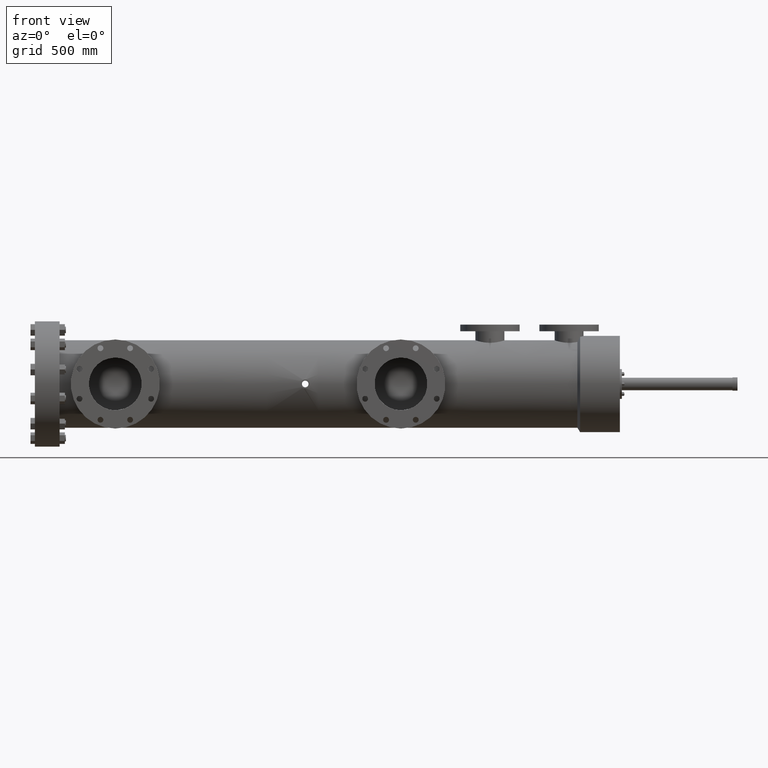
[diagram: clean part render]
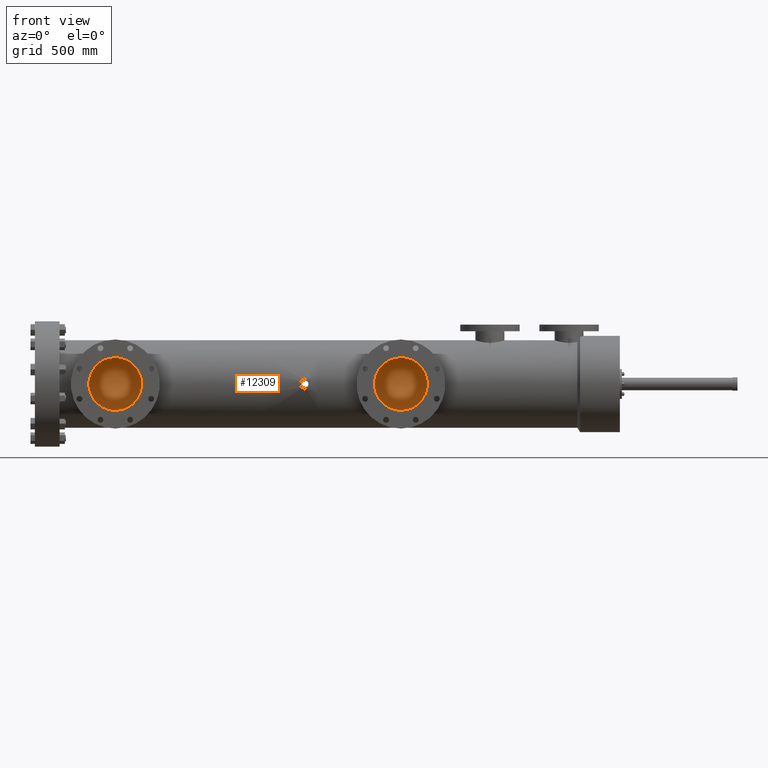
[diagram: same view with one face highlighted and labeled with its STEP entity id]
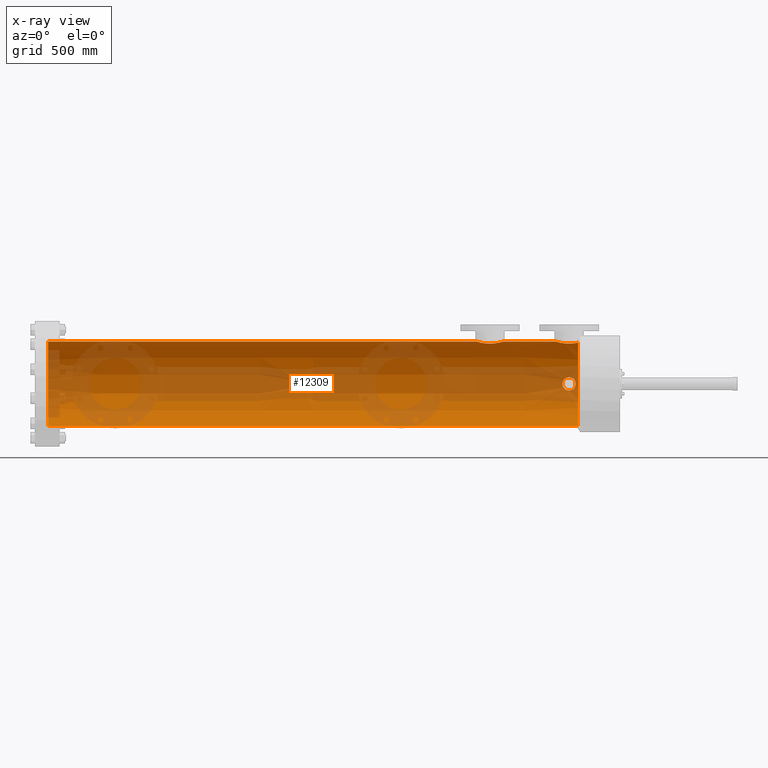
[diagram: x-ray of the same camera — body ghosted, the highlighted face saturated]
A machine part, front view. The second image highlights one B-rep face of the part: STEP entity #12309.
The next image is the same camera in x-ray: the body ghosted, the highlighted face saturated — about 45% of this face is hidden behind the body in this view.
In plain terms, the highlighted conical surface has half-angle 0.002 deg.
Its self-contained STEP definition (entity closure, byte-faithful):
#115 = CARTESIAN_POINT ( 'NONE',  ( 774.8018974601540094, 190.5589292098104295, -0.6467010859224877617 ) ) ;
#169 = CARTESIAN_POINT ( 'NONE',  ( 773.6216814916365365, 184.6462986145902789, 6.412505325674096035 ) ) ;
#195 = CARTESIAN_POINT ( 'NONE',  ( 775.4012274676886136, 190.5153388177687077, -0.9870014884922523324 ) ) ;
#223 = ORIENTED_EDGE ( 'NONE', *, *, #16127, .T. ) ;
#321 = CARTESIAN_POINT ( 'NONE',  ( 776.5645900647415374, 190.5915681774710606, -0.03334633678277673652 ) ) ;
#401 = CARTESIAN_POINT ( 'NONE',  ( 735.4932779685070727, 190.5711632343196982, -0.4967609947282091709 ) ) ;
#410 = CARTESIAN_POINT ( 'NONE',  ( 776.0661116071254355, 190.5328679123720690, 0.8675504922731781532 ) ) ;
#435 = CARTESIAN_POINT ( 'NONE',  ( 775.0935359507411704, 186.1072391863953897, 6.128677650737027527 ) ) ;
#497 = CARTESIAN_POINT ( 'NONE',  ( 776.5121329472525531, 190.5836117278993243, 0.3213633591862034011 ) ) ;
#521 = CARTESIAN_POINT ( 'NONE',  ( 775.2851245018575810, 186.1443616974370343, 6.116773063595519311 ) ) ;
#590 = CARTESIAN_POINT ( 'NONE',  ( 775.5977059906512068, 190.5133874980668054, 0.9994983764693478046 ) ) ;
#611 = CARTESIAN_POINT ( 'NONE',  ( 775.6733703215244304, 186.1606542705831941, 6.111476365449473036 ) ) ;
#674 = CARTESIAN_POINT ( 'NONE',  ( 775.7437759936209432, 190.5158306480995805, -0.9838787867319562785 ) ) ;
#700 = DIRECTION ( 'NONE',  ( -1.000000000000000000, -0.0000000000000000000, -0.0000000000000000000 ) ) ;
#848 = CARTESIAN_POINT ( 'NONE',  ( 776.0503174261893946, 190.5318561841139910, -0.8742182035266556905 ) ) ;
#860 = CARTESIAN_POINT ( 'NONE',  ( 762.2461789292873391, 185.6670823260203917, 6.251050319724373416 ) ) ;
#931 = CARTESIAN_POINT ( 'NONE',  ( 775.5972991718479079, 190.5133230720630877, -0.9999073148402110034 ) ) ;
#933 = EDGE_CURVE ( 'NONE', #7680, #22756, #8028, .T. ) ;
#953 = CARTESIAN_POINT ( 'NONE',  ( 775.5268210231757848, 186.1654649984477601, 6.109896552126921065 ) ) ;
#1019 = CARTESIAN_POINT ( 'NONE',  ( 762.9514890501737909, 186.0671911915963221, 6.140886457887309469 ) ) ;
#1034 = DIRECTION ( 'NONE',  ( 0.0000000000000000000, 0.0000000000000000000, -1.000000000000000000 ) ) ;
#1047 = B_SPLINE_CURVE_WITH_KNOTS ( 'NONE', 3,
 ( #7298, #21105, #18875, #13166, #23079, #15149, #3088, #3426, #20857, #22836, #10990, #5381, #3341, #25045, #1208, #5301, #17220, #11069, #11239, #24877, #13249, #22758, #24787, #13078, #13002, #3170, #16974, #18960, #5466, #16189, #2646, #14617, #3479, #17609, #11737, #4132, #24485, #17837, #6178, #11277, #21220, #25133, #8050, #7711, #9686, #20323, #401, #14092, #4333 ),
 .UNSPECIFIED., .F., .F.,
 ( 4, 2, 2, 2, 2, 2, 2, 2, 2, 2, 2, 2, 2, 2, 2, 1, 2, 2, 2, 2, 2, 2, 2, 2, 4 ),
 ( 0.01136161700840032651, 0.01260292304035720741, 0.01384422907231408657, 0.01632684113623822028, 0.01756814716820032096, 0.01880945320016242511, 0.02129206526409538336, 0.02377467732802833814, 0.02501598335999477216, 0.02625728939196120271, 0.02873990145589406381, 0.02998120748786049436, 0.03122251351982692491, 0.03370512558375977907, 0.03494643161572619228, 0.03618773764769260548, 0.03742904367965901868, 0.03867034971162543189, 0.04115296177555825136, 0.04239426780752465762, 0.04363557383949107082, 0.04611818590341507096, 0.04735949193538196295, 0.04860079796734885493, 0.05108341003128268054 ),
 .UNSPECIFIED. ) ;
#1107 = DIRECTION ( 'NONE',  ( 0.9999999995803368069, 3.547940017089211670E-21, 2.897112881493199885E-05 ) ) ;
#1140 = CARTESIAN_POINT ( 'NONE',  ( 765.5653099672541657, 184.1630862371837907, 6.429896390524644900 ) ) ;
#1208 = CARTESIAN_POINT ( 'NONE',  ( 735.1611407429502378, 190.5831959563818998, 0.3048643232740104181 ) ) ;
#1262 = CARTESIAN_POINT ( 'NONE',  ( 735.7805527472095264, 190.5746806054010563, -0.4493246611605788421 ) ) ;
#1341 = CARTESIAN_POINT ( 'NONE',  ( 735.9346085877175483, 190.5819214555514804, 0.3301901266214414821 ) ) ;
#1356 = CARTESIAN_POINT ( 'NONE',  ( 764.0854868645545821, 186.0957372953721460, 6.132013986825921137 ) ) ;
#1379 = EDGE_LOOP ( 'NONE', ( #2669, #23758, #25103, #3828, #17767, #7952, #12653, #15263, #17862, #8351 ) ) ;
#1425 = CARTESIAN_POINT ( 'NONE',  ( 735.5587819821047333, 190.5709101236874403, 0.5000000000000544009 ) ) ;
#1445 = CARTESIAN_POINT ( 'NONE',  ( 765.0259242824093917, 185.5312030992457153, 6.282443076800944048 ) ) ;
#1509 = CARTESIAN_POINT ( 'NONE',  ( 735.9008304833172360, 190.5800300182329750, -0.3650597981005604953 ) ) ;
#1789 = EDGE_LOOP ( 'NONE', ( #19631, #23867 ) ) ;
#1840 = CARTESIAN_POINT ( 'NONE',  ( 774.6032820298526076, 190.5856385488207820, 0.2752661646979189802 ) ) ;
#2008 = CARTESIAN_POINT ( 'NONE',  ( 775.2422006397534915, 190.5212087151121807, -0.9487257024502747660 ) ) ;
#2091 = CARTESIAN_POINT ( 'NONE',  ( 775.4994325593563644, 190.5135714598633569, -0.9983151830777264868 ) ) ;
#2104 = VERTEX_POINT ( 'NONE', #6049 ) ;
#2176 = CARTESIAN_POINT ( 'NONE',  ( 774.5968164139786722, 190.5865985156552256, -0.2593974124721220575 ) ) ;
#2210 = CARTESIAN_POINT ( 'NONE',  ( 776.5010795724194850, 190.5819851870008961, 0.3522360067479590739 ) ) ;
#2235 = CARTESIAN_POINT ( 'NONE',  ( 773.9226440350281564, 185.3050793387506303, 6.327636448114230205 ) ) ;
#2316 = CARTESIAN_POINT ( 'NONE',  ( 773.9508210611377308, 185.3445829754314218, 6.320369488365783717 ) ) ;
#2330 = B_SPLINE_CURVE_WITH_KNOTS ( 'NONE', 3,
 ( #17441, #7596, #2091, #15892, #195, #23879, #2008, #23718, #4059, #3981, #11903, #19761, #3802, #13900, #17783, #6040, #115, #7940, #19842, #13645, #6122, #15622, #21859, #19589, #23542, #9909, #2176, #8021, #5787, #10070, #21595, #7767, #3894, #12075, #17867, #19923, #7857, #11991, #1840, #5952, #13974, #17608, #15975, #9746, #11736, #4131, #17950, #13818, #25520, #8100, #17690, #21943, #13727, #15710, #5869, #19671, #21683, #9831 ),
 .UNSPECIFIED., .F., .F.,
 ( 4, 2, 2, 2, 2, 2, 2, 2, 2, 2, 2, 2, 2, 2, 2, 2, 2, 2, 2, 2, 2, 2, 2, 2, 2, 2, 2, 2, 4 ),
 ( 0.05568771979550048157, 0.05817337644800811558, 0.06065903310051574959, 0.06563034640552065091, 0.06811600305802317790, 0.07060165971052570488, 0.07557297301552193258, 0.07681580134177115604, 0.07805862966802036562, 0.08054428632052530734, 0.08302994297303024906, 0.08427277129928271993, 0.08551559962553519079, 0.09048691293054507423, 0.09297256958304893348, 0.09421539790930036351, 0.09545822623555179354, 0.1004295395405575275, 0.1016723678668084579, 0.1029151961930593884, 0.1054008528455612492, 0.1103721661505648322, 0.1153434794555684151, 0.1178291361080665567, 0.1203147927605647122, 0.1252861060655610093, 0.1277717627180541826, 0.1302574193705473560, 0.1352287326755233499 ),
 .UNSPECIFIED. ) ;
#2484 = CARTESIAN_POINT ( 'NONE',  ( 696.5682505649399445, 184.1613553879231517, 0.0000000000000000000 ) ) ;
#2594 = CARTESIAN_POINT ( 'NONE',  ( 776.3576086705513717, 185.9998333693068560, 6.161792473806992021 ) ) ;
#2630 = VERTEX_POINT ( 'NONE', #9476 ) ;
#2646 = CARTESIAN_POINT ( 'NONE',  ( 735.0961553457668742, 190.5875617462756679, -0.1917574297461647759 ) ) ;
#2669 = ORIENTED_EDGE ( 'NONE', *, *, #4978, .F. ) ;
#2680 = CARTESIAN_POINT ( 'NONE',  ( 776.6366656246901812, 185.8548035121141595, 6.203482080270395826 ) ) ;
#2750 = CARTESIAN_POINT ( 'NONE',  ( 762.3992060489816822, 185.7895974161339154, 6.220338775416065502 ) ) ;
#2763 = CARTESIAN_POINT ( 'NONE',  ( 776.4461670853705755, 185.9590177594216982, 6.173828952968483996 ) ) ;
#2764 = AXIS2_PLACEMENT_3D ( 'NONE', #15475, #3921, #19519 ) ;
#2777 = EDGE_CURVE ( 'NONE', #22386, #6374, #9299, .T. ) ;
#2806 = FACE_OUTER_BOUND ( 'NONE', #1379, .T. ) ;
#2822 = CARTESIAN_POINT ( 'NONE',  ( 775.6786952553908350, 190.5143275026299534, -0.9935221949488035609 ) ) ;
#2918 = CARTESIAN_POINT ( 'NONE',  ( 762.1741049913357529, 185.6006542532556693, 6.266680284223852482 ) ) ;
#3088 = CARTESIAN_POINT ( 'NONE',  ( 735.3977096099723667, 190.5728575839785606, 0.4744782333907113792 ) ) ;
#3144 = CARTESIAN_POINT ( 'NONE',  ( 735.7195095595885732, 190.5729104931402560, -0.4737464280718589604 ) ) ;
#3170 = CARTESIAN_POINT ( 'NONE',  ( 735.0587947307024024, 190.5903672024202535, -0.03283189096730383671 ) ) ;
#3310 = LINE ( 'NONE', #3713, #10372 ) ;
#3341 = CARTESIAN_POINT ( 'NONE',  ( 735.2285011193112041, 190.5793621758232348, 0.3768350768965784137 ) ) ;
#3419 = CARTESIAN_POINT ( 'NONE',  ( 765.5138910721260572, 184.6187636010735957, 6.413928218067154852 ) ) ;
#3426 = CARTESIAN_POINT ( 'NONE',  ( 735.3522959367327303, 190.5742114230318975, 0.4556665324809229811 ) ) ;
#3477 = CARTESIAN_POINT ( 'NONE',  ( 736.0213825182054279, 190.5875866659651763, -0.1918188493781887438 ) ) ;
#3479 = CARTESIAN_POINT ( 'NONE',  ( 735.1255078316979734, 190.5855205362816491, -0.2500820559305814150 ) ) ;
#3561 = CARTESIAN_POINT ( 'NONE',  ( 736.0580082943215530, 190.5903368184789883, 0.03231260620741710499 ) ) ;
#3638 = CARTESIAN_POINT ( 'NONE',  ( 735.8638333524589825, 190.5781159375073344, 0.3975228399193793671 ) ) ;
#3694 = FACE_BOUND ( 'NONE', #16686, .T. ) ;
#3713 = CARTESIAN_POINT ( 'NONE',  ( 698.3182562679656940, 184.1613553879231517, 6.427948391113559978 ) ) ;
#3727 = EDGE_CURVE ( 'NONE', #22756, #15425, #23454, .T. ) ;
#3802 = CARTESIAN_POINT ( 'NONE',  ( 774.9040929305222107, 190.5473950188007848, -0.7534773077110000772 ) ) ;
#3828 = ORIENTED_EDGE ( 'NONE', *, *, #9170, .F. ) ;
#3894 = CARTESIAN_POINT ( 'NONE',  ( 774.5647793454040766, 190.5915138887940543, -0.01591537890057930296 ) ) ;
#3921 = DIRECTION ( 'NONE',  ( 1.000000000000000000, 0.0000000000000000000, 0.0000000000000000000 ) ) ;
#3981 = CARTESIAN_POINT ( 'NONE',  ( 775.0637804840727085, 190.5329619064193594, -0.8660175990655025746 ) ) ;
#4059 = CARTESIAN_POINT ( 'NONE',  ( 775.1219293945142681, 190.5286560253550761, -0.8971401039078031880 ) ) ;
#4088 = CARTESIAN_POINT ( 'NONE',  ( 761.5653101469899866, 184.1623938999732388, 6.429780673746382291 ) ) ;
#4104 = CARTESIAN_POINT ( 'NONE',  ( 773.5649761354594602, 184.2620171177405268, 6.430096033903203612 ) ) ;
#4131 = CARTESIAN_POINT ( 'NONE',  ( 774.8807730735202313, 190.5499743744161094, 0.7301535079844102549 ) ) ;
#4132 = CARTESIAN_POINT ( 'NONE',  ( 735.1821387323742556, 190.5819147106084301, -0.3304584306983124886 ) ) ;
#4196 = CARTESIAN_POINT ( 'NONE',  ( 774.0098254708449304, 185.4219625068727737, 6.305483898899150397 ) ) ;
#4258 = CARTESIAN_POINT ( 'NONE',  ( 775.9327744047394617, 190.5239703713840527, 0.9298409638293061441 ) ) ;
#4280 = CARTESIAN_POINT ( 'NONE',  ( 774.4735909862067729, 185.8401149349418233, 6.207201693404065246 ) ) ;
#4315 = EDGE_CURVE ( 'NONE', #21035, #7680, #18648, .T. ) ;
#4333 = CARTESIAN_POINT ( 'NONE',  ( 735.5587819821047333, 190.5709101236874403, -0.5000000000000544009 ) ) ;
#4341 = CARTESIAN_POINT ( 'NONE',  ( 776.1736413203137772, 190.5424117127975592, 0.7937790725545542658 ) ) ;
#4363 = CARTESIAN_POINT ( 'NONE',  ( 775.1412864707529025, 186.1182029664798279, 6.125187250111346238 ) ) ;
#4421 = CARTESIAN_POINT ( 'NONE',  ( 775.5646964343260379, 190.5133221158980348, -0.9999073148120636301 ) ) ;
#4455 = VERTEX_POINT ( 'NONE', #11486 ) ;
#4622 = CARTESIAN_POINT ( 'NONE',  ( 765.5653088887836475, 184.1613553879231517, 6.429896614138280064 ) ) ;
#4686 = CARTESIAN_POINT ( 'NONE',  ( 773.5649772248250429, 184.1613553879231517, 6.430128373560217270 ) ) ;
#4696 = CARTESIAN_POINT ( 'NONE',  ( 761.6427979739569309, 184.7157204222528435, 6.405917552011721305 ) ) ;
#4768 = CARTESIAN_POINT ( 'NONE',  ( 776.5564245662775420, 190.5903024741597278, -0.1317979291871519687 ) ) ;
#4778 = CARTESIAN_POINT ( 'NONE',  ( 763.8286140777847777, 186.1503603818511579, 6.114532825331004062 ) ) ;
#4792 = CARTESIAN_POINT ( 'NONE',  ( 776.7937629589727067, 185.7443609993572124, 6.232584394557497909 ) ) ;
#4849 = CARTESIAN_POINT ( 'NONE',  ( 735.8499999188074980, 190.5775165648176994, -0.4067661292010156249 ) ) ;
#4860 = CARTESIAN_POINT ( 'NONE',  ( 776.5308609728500642, 190.5864018784632492, -0.2596422911563070479 ) ) ;
#4868 = CARTESIAN_POINT ( 'NONE',  ( 762.2710868071127379, 185.6885738478931387, 6.245830946577670240 ) ) ;
#4880 = CARTESIAN_POINT ( 'NONE',  ( 776.2444310484091829, 186.0451164575074472, 6.148109644990564782 ) ) ;
#4951 = CARTESIAN_POINT ( 'NONE',  ( 763.4992915001399751, 186.1626173790483278, 6.110462681510800742 ) ) ;
#4978 = EDGE_CURVE ( 'NONE', #14492, #4455, #3310, .T. ) ;
#5002 = VERTEX_POINT ( 'NONE', #13633 ) ;
#5035 = CARTESIAN_POINT ( 'NONE',  ( 761.7437091770744928, 184.9916993813514523, 6.376233718492364311 ) ) ;
#5212 = CARTESIAN_POINT ( 'NONE',  ( 765.3005116552235449, 185.1664922957834563, 6.351796742237810101 ) ) ;
#5301 = CARTESIAN_POINT ( 'NONE',  ( 735.1339984724335181, 190.5849519810043091, 0.2642426395985386089 ) ) ;
#5332 = CARTESIAN_POINT ( 'NONE',  ( 773.5649772248250429, 184.1613553879231517, 6.430128373560217270 ) ) ;
#5358 = CARTESIAN_POINT ( 'NONE',  ( 735.5914012567219515, 190.5709110715756935, 0.5000000000000545120 ) ) ;
#5368 = CARTESIAN_POINT ( 'NONE',  ( 698.3182562679656940, 184.1613553879231517, 6.427948391113559978 ) ) ;
#5381 = CARTESIAN_POINT ( 'NONE',  ( 735.2537477102983985, 190.5780985150881861, 0.3975112941969108915 ) ) ;
#5443 = CARTESIAN_POINT ( 'NONE',  ( 735.6882991040369006, 190.5722032187923105, 0.4832110644546664391 ) ) ;
#5459 = CARTESIAN_POINT ( 'NONE',  ( 765.4978910570342805, 184.6825818361337781, 6.409049507614184016 ) ) ;
#5466 = CARTESIAN_POINT ( 'NONE',  ( 735.0756269763263617, 190.5890787915352291, -0.1297276018896044436 ) ) ;
#5524 = CARTESIAN_POINT ( 'NONE',  ( 735.9653586397062099, 190.5837976854255942, 0.2914875042189448151 ) ) ;
#5613 = CARTESIAN_POINT ( 'NONE',  ( 735.7797735717568912, 190.5747089254424793, 0.4488097811508083845 ) ) ;
#5787 = CARTESIAN_POINT ( 'NONE',  ( 774.5728552083833165, 190.5902624517464687, -0.1309844985682924179 ) ) ;
#5869 = CARTESIAN_POINT ( 'NONE',  ( 775.3378231532730069, 190.5172851427570038, 0.9743766370191269122 ) ) ;
#5952 = CARTESIAN_POINT ( 'NONE',  ( 774.6176338106706680, 190.5835016354504035, 0.3224469675273418101 ) ) ;
#6040 = CARTESIAN_POINT ( 'NONE',  ( 774.8125993618355096, 190.5576612093658184, -0.6591189867865715479 ) ) ;
#6049 = CARTESIAN_POINT ( 'NONE',  ( 776.9391352988310473, 185.6166071794199013, 6.263389678457415677 ) ) ;
#6122 = CARTESIAN_POINT ( 'NONE',  ( 774.6984985982650187, 190.5720667761797813, -0.5005873393654852732 ) ) ;
#6178 = CARTESIAN_POINT ( 'NONE',  ( 735.2542874196914227, 190.5781173302727325, -0.3969309595121714995 ) ) ;
#6187 = CARTESIAN_POINT ( 'NONE',  ( 774.2058555722042001, 185.6338308467375384, 6.259605196570538155 ) ) ;
#6330 = CARTESIAN_POINT ( 'NONE',  ( 776.2489089375969797, 190.5500447368119126, 0.7298921831123360571 ) ) ;
#6359 = CARTESIAN_POINT ( 'NONE',  ( 774.6828992676962571, 185.9610064232748812, 6.173314914851143698 ) ) ;
#6374 = VERTEX_POINT ( 'NONE', #15588 ) ;
#6435 = DIRECTION ( 'NONE',  ( 0.0000000000000000000, 0.0000000000000000000, 1.000000000000000000 ) ) ;
#6518 = CARTESIAN_POINT ( 'NONE',  ( 775.9773481067352350, 190.5266529875607944, -0.9113696848962299368 ) ) ;
#6706 = CARTESIAN_POINT ( 'NONE',  ( 763.0455318138507437, 186.0958209633564024, 6.131955184409216386 ) ) ;
#6779 = CARTESIAN_POINT ( 'NONE',  ( 776.1747093586259325, 190.5423341861751396, -0.7949687682841353187 ) ) ;
#6791 = CARTESIAN_POINT ( 'NONE',  ( 764.0215894904218885, 186.1117937352971978, 6.126905243673303580 ) ) ;
#6864 = CARTESIAN_POINT ( 'NONE',  ( 735.8887053132502842, 190.5793926460453065, -0.3760615637180955706 ) ) ;
#6872 = CARTESIAN_POINT ( 'NONE',  ( 775.7274811196017481, 190.5153916218459926, -0.9867046581038640962 ) ) ;
#6897 = CARTESIAN_POINT ( 'NONE',  ( 776.4242983204763959, 185.9695876427171299, 6.170739453635887273 ) ) ;
#6964 = CARTESIAN_POINT ( 'NONE',  ( 763.5326131791758826, 186.1634390260098257, 6.110194290812652973 ) ) ;
#7055 = CARTESIAN_POINT ( 'NONE',  ( 765.3618430062367679, 185.0519802602660775, 6.369068067731166849 ) ) ;
#7080 = CARTESIAN_POINT ( 'NONE',  ( 765.5653092483007640, 184.1617015782632620, 6.429896614148695733 ) ) ;
#7136 = CARTESIAN_POINT ( 'NONE',  ( 764.8886582670006646, 185.6685944905612473, 6.251429089960256924 ) ) ;
#7298 = CARTESIAN_POINT ( 'NONE',  ( 735.5587819821047333, 190.5709101236874403, 0.5000000000000544009 ) ) ;
#7374 = CARTESIAN_POINT ( 'NONE',  ( 764.4551307323952187, 185.9593525139665928, 6.173582528649150802 ) ) ;
#7516 = CARTESIAN_POINT ( 'NONE',  ( 735.8890068671537392, 190.5793794579230394, 0.3768475106066606628 ) ) ;
#7595 = CARTESIAN_POINT ( 'NONE',  ( 735.9836045614558770, 190.5849790932013264, 0.2641880385175034429 ) ) ;
#7596 = CARTESIAN_POINT ( 'NONE',  ( 775.5320783077506803, 190.5133211592817872, -0.9999073147839032671 ) ) ;
#7680 = VERTEX_POINT ( 'NONE', #21602 ) ;
#7711 = CARTESIAN_POINT ( 'NONE',  ( 735.3980331656415501, 190.5729016295352665, -0.4737400652188835104 ) ) ;
#7767 = CARTESIAN_POINT ( 'NONE',  ( 774.5651738886868998, 190.5914525101331378, -0.03233124434229243255 ) ) ;
#7857 = CARTESIAN_POINT ( 'NONE',  ( 774.5908295770012728, 190.5875140389446472, 0.2273203256357705926 ) ) ;
#7940 = CARTESIAN_POINT ( 'NONE',  ( 774.7707983165897758, 190.5626859733275467, -0.6087793585741556601 ) ) ;
#7952 = ORIENTED_EDGE ( 'NONE', *, *, #7991, .F. ) ;
#7991 = EDGE_CURVE ( 'NONE', #15425, #17016, #14511, .T. ) ;
#8021 = CARTESIAN_POINT ( 'NONE',  ( 774.5776859295920076, 190.5895167974348112, -0.1633840191459732805 ) ) ;
#8028 = B_SPLINE_CURVE_WITH_KNOTS ( 'NONE', 3,
 ( #20621, #1140, #15164, #7080, #21286 ),
 .UNSPECIFIED., .F., .F.,
 ( 4, 1, 4 ),
 ( 0.04988998861977393673, 0.04991614335638763778, 0.04994229809300133882 ),
 .UNSPECIFIED. ) ;
#8050 = CARTESIAN_POINT ( 'NONE',  ( 735.3824253771603026, 190.5733129014445808, -0.4681523361804617589 ) ) ;
#8055 = CARTESIAN_POINT ( 'NONE',  ( 776.2952034105350094, 190.5551697608881909, 0.6835562947316026206 ) ) ;
#8076 = CARTESIAN_POINT ( 'NONE',  ( 773.6798193787295759, 184.8331881456786618, 6.395102154961294083 ) ) ;
#8100 = CARTESIAN_POINT ( 'NONE',  ( 775.0638991532349564, 190.5327875567135436, 0.8679322599518530801 ) ) ;
#8230 = CARTESIAN_POINT ( 'NONE',  ( 775.5811491273799447, 190.5133225984185401, 0.9999073148262699329 ) ) ;
#8258 = CARTESIAN_POINT ( 'NONE',  ( 774.8598860749224286, 186.0375139281080692, 6.150500464228892739 ) ) ;
#8319 = CARTESIAN_POINT ( 'NONE',  ( 776.3784555250767880, 190.5652339089241423, 0.5819696576882181782 ) ) ;
#8345 = CARTESIAN_POINT ( 'NONE',  ( 775.2370617818935443, 186.1369805977199121, 6.119164287535142854 ) ) ;
#8351 = ORIENTED_EDGE ( 'NONE', *, *, #11283, .F. ) ;
#8429 = CARTESIAN_POINT ( 'NONE',  ( 775.4297743759275363, 186.1612281877528687, 6.111292355305110391 ) ) ;
#8507 = DIRECTION ( 'NONE',  ( -1.000000000000000000, -0.0000000000000000000, -0.0000000000000000000 ) ) ;
#8520 = CARTESIAN_POINT ( 'NONE',  ( 775.8686829819263266, 186.1408480317097656, 6.117932568625019663 ) ) ;
#8649 = CONICAL_SURFACE ( 'NONE', #2764, 6.427948391113559978, 2.897112881898470592E-05 ) ;
#8672 = CARTESIAN_POINT ( 'NONE',  ( 776.3160847241275633, 190.5576217133252328, -0.6599260320854305473 ) ) ;
#8683 = CARTESIAN_POINT ( 'NONE',  ( 762.1977149305943158, 185.6231425127049874, 6.261469800138987019 ) ) ;
#8751 = CARTESIAN_POINT ( 'NONE',  ( 776.3268825002177209, 190.5589004664150252, -0.6474253808075347560 ) ) ;
#8774 = CARTESIAN_POINT ( 'NONE',  ( 775.7223654910030746, 186.1573915326143549, 6.112544261708623416 ) ) ;
#8819 = CARTESIAN_POINT ( 'NONE',  ( 735.6722776743960139, 190.5718982898560512, -0.4872207342322069090 ) ) ;
#8840 = CARTESIAN_POINT ( 'NONE',  ( 762.0591038448136487, 185.4856544658965731, 6.292645835624000483 ) ) ;
#8915 = CARTESIAN_POINT ( 'NONE',  ( 761.8344508087001259, 185.1660326224128994, 6.350875435678811520 ) ) ;
#8978 = VECTOR ( 'NONE', #17763, 39.37007874015748854 ) ;
#9133 = CARTESIAN_POINT ( 'NONE',  ( 773.5649761354594602, 184.1634428412521913, 6.430128034697045969 ) ) ;
#9156 = CARTESIAN_POINT ( 'NONE',  ( 736.0146200617632530, 190.5871091320202311, 0.2061058299254090176 ) ) ;
#9170 = EDGE_CURVE ( 'NONE', #2104, #6374, #15492, .T. ) ;
#9235 = CARTESIAN_POINT ( 'NONE',  ( 736.0587928127291661, 190.5903980073030368, 0.01596883159094027171 ) ) ;
#9254 = CARTESIAN_POINT ( 'NONE',  ( 765.1523086905854143, 185.3823210274802591, 6.313105716690939673 ) ) ;
#9299 = LINE ( 'NONE', #18020, #8978 ) ;
#9321 = CARTESIAN_POINT ( 'NONE',  ( 735.9920461382621397, 190.5855449303520857, 0.2501061270800358227 ) ) ;
#9338 = CARTESIAN_POINT ( 'NONE',  ( 765.4370497348290883, 184.8711415807422043, 6.390885130942090875 ) ) ;
#9476 = CARTESIAN_POINT ( 'NONE',  ( 735.5587819821047333, 190.5709101236874403, 0.5000000000000544009 ) ) ;
#9492 = CARTESIAN_POINT ( 'NONE',  ( 736.0459295184859911, 190.5894092003804587, -0.1138345847866508165 ) ) ;
#9686 = CARTESIAN_POINT ( 'NONE',  ( 735.4294738819004351, 190.5721913180621243, -0.4832693313355708176 ) ) ;
#9746 = CARTESIAN_POINT ( 'NONE',  ( 774.7702563081286371, 190.5626829642375526, 0.6107658606333190576 ) ) ;
#9831 = CARTESIAN_POINT ( 'NONE',  ( 775.5646964343260379, 190.5133221158980348, 0.9999073148120636301 ) ) ;
#9866 = CARTESIAN_POINT ( 'NONE',  ( 761.5653099672540520, 184.1634323763099133, 6.429780394193252313 ) ) ;
#9909 = CARTESIAN_POINT ( 'NONE',  ( 774.6157099164005331, 190.5837441261461436, -0.3218372479421849897 ) ) ;
#10017 = CARTESIAN_POINT ( 'NONE',  ( 776.5392147741609961, 190.5876674478703308, 0.2262743573751576642 ) ) ;
#10070 = CARTESIAN_POINT ( 'NONE',  ( 774.5679999080989546, 190.5910137614141320, -0.08177373796624848312 ) ) ;
#10108 = CARTESIAN_POINT ( 'NONE',  ( 776.5312803418821659, 190.5864648785584450, 0.2581202671199033793 ) ) ;
#10214 = CARTESIAN_POINT ( 'NONE',  ( 774.4329557406101685, 185.8129509941772710, 6.214496448486150904 ) ) ;
#10280 = CARTESIAN_POINT ( 'NONE',  ( 775.8863534686778394, 190.5214516586045477, 0.9469016244556449635 ) ) ;
#10299 = CARTESIAN_POINT ( 'NONE',  ( 773.6639140521373292, 184.7866192994041796, 6.399831124132539628 ) ) ;
#10372 = VECTOR ( 'NONE', #17770, 39.37007874015748854 ) ;
#10548 = CARTESIAN_POINT ( 'NONE',  ( 761.5653099672540520, 184.1634323763099133, 6.429780394193252313 ) ) ;
#10631 = CARTESIAN_POINT ( 'NONE',  ( 776.1067631355689400, 190.5364110709268175, -0.8403849485918400974 ) ) ;
#10643 = CARTESIAN_POINT ( 'NONE',  ( 761.6339790001972005, 184.6840556830645426, 6.408581683901746651 ) ) ;
#10809 = CARTESIAN_POINT ( 'NONE',  ( 762.6755032292510350, 185.9594205289845661, 6.173511399441822256 ) ) ;
#10961 = CARTESIAN_POINT ( 'NONE',  ( 735.5917938145074686, 190.5709110829830593, -0.5000000000000545120 ) ) ;
#10990 = CARTESIAN_POINT ( 'NONE',  ( 735.2943642979090555, 190.5763399683012551, 0.4246746664004160121 ) ) ;
#11060 = CARTESIAN_POINT ( 'NONE',  ( 765.5653099672541657, 184.1634323763099133, 6.429896278714609004 ) ) ;
#11069 = CARTESIAN_POINT ( 'NONE',  ( 735.1101247131223317, 190.5865758934488099, 0.2213049319171640772 ) ) ;
#11132 = CARTESIAN_POINT ( 'NONE',  ( 736.0419006071064132, 190.5891040586598137, -0.1298602828305510382 ) ) ;
#11206 = AXIS2_PLACEMENT_3D ( 'NONE', #2484, #8507, #6435 ) ;
#11213 = CARTESIAN_POINT ( 'NONE',  ( 735.9920120874775193, 190.5855426804068884, -0.2501589656360618252 ) ) ;
#11239 = CARTESIAN_POINT ( 'NONE',  ( 735.1030366188920198, 190.5870761184628464, 0.2063124371501165732 ) ) ;
#11277 = CARTESIAN_POINT ( 'NONE',  ( 735.2675478474928923, 190.5775003657300033, -0.4067551319959890610 ) ) ;
#11282 = CARTESIAN_POINT ( 'NONE',  ( 773.5649761354594602, 184.1627469561558144, 6.430128260606646329 ) ) ;
#11283 = EDGE_CURVE ( 'NONE', #4455, #21035, #18482, .T. ) ;
#11386 = CARTESIAN_POINT ( 'NONE',  ( 736.0523771706161824, 190.5899012489577444, 0.08143230342846627390 ) ) ;
#11486 = CARTESIAN_POINT ( 'NONE',  ( 761.5653110457245702, 184.1613553879231517, 6.429780729685459661 ) ) ;
#11736 = CARTESIAN_POINT ( 'NONE',  ( 774.8117455191979843, 190.5576075294545149, 0.6611476497434757293 ) ) ;
#11737 = CARTESIAN_POINT ( 'NONE',  ( 735.1614385998474290, 190.5831769867313596, -0.3052874919526218922 ) ) ;
#11768 = CARTESIAN_POINT ( 'NONE',  ( 761.5653106862249615, 184.1617015615828734, 6.429780729675043993 ) ) ;
#11893 = B_SPLINE_CURVE_WITH_KNOTS ( 'NONE', 3,
 ( #16699, #10961, #24762, #8819, #12973, #3144, #16948, #1262, #17029, #4849, #18670, #6864, #1509, #13384, #15294, #21245, #11213, #13313, #3477, #15452, #11132, #9492, #23291, #19104, #9235, #3561, #17199, #11386, #21078, #21155, #9156, #25264, #9321, #7595, #5524, #25189, #1341, #13225, #7516, #3638, #24933, #17438, #5613, #17284, #15126, #5443, #13134, #19420, #5358, #1425 ),
 .UNSPECIFIED., .F., .F.,
 ( 4, 2, 2, 2, 2, 2, 2, 2, 2, 1, 2, 2, 2, 2, 2, 2, 2, 2, 2, 2, 2, 2, 1, 2, 2, 4 ),
 ( 0.05108341003128268054, 0.05356536368776870782, 0.05480634051601171453, 0.05604731734425472817, 0.05852927100074074851, 0.05977024782898817529, 0.06101122465723560206, 0.06349317831373786636, 0.06473415514198896381, 0.06597513197024004739, 0.06721610879849113096, 0.06845708562674221453, 0.07093903928324640784, 0.07218001611149851837, 0.07342099293975061503, 0.07590294659625476670, 0.07714392342450687723, 0.07838490025275898776, 0.07962587708101109829, 0.08086685390926320882, 0.08334880756577496552, 0.08458978439403083693, 0.08583076122228672222, 0.08707173805054259363, 0.08831271487879846505, 0.09079466853531022175 ),
 .UNSPECIFIED. ) ;
#11903 = CARTESIAN_POINT ( 'NONE',  ( 775.0357134478540502, 190.5352378264881850, -0.8491500679403843899 ) ) ;
#11968 = CARTESIAN_POINT ( 'NONE',  ( 773.5649761354594602, 184.1634428412521913, 6.430128034697045969 ) ) ;
#11991 = CARTESIAN_POINT ( 'NONE',  ( 774.5988589360154037, 190.5863023517782153, 0.2593242020255136504 ) ) ;
#12075 = CARTESIAN_POINT ( 'NONE',  ( 774.5648172407328502, 190.5915079970772297, 0.06597507736048158211 ) ) ;
#12110 = CARTESIAN_POINT ( 'NONE',  ( 776.3587638098007346, 190.5627529836715155, 0.6085641385922960778 ) ) ;
#12151 = ORIENTED_EDGE ( 'NONE', *, *, #15335, .T. ) ;
#12224 = CARTESIAN_POINT ( 'NONE',  ( 775.0696512026769369, 186.1012904529671061, 6.130563422563557907 ) ) ;
#12296 = CARTESIAN_POINT ( 'NONE',  ( 776.4636407321230536, 190.5765953145127867, 0.4426930449376884069 ) ) ;
#12309 = ADVANCED_FACE ( 'NONE', ( #2806, #3694, #20690 ), #8649, .F. ) ;
#12322 = CARTESIAN_POINT ( 'NONE',  ( 774.3544131580453040, 185.7562028980829325, 6.229299022440591749 ) ) ;
#12387 = CARTESIAN_POINT ( 'NONE',  ( 775.6470382923582747, 190.5138372900519812, 0.9966458705496639148 ) ) ;
#12473 = CARTESIAN_POINT ( 'NONE',  ( 776.5003443604282438, 190.5818875151281873, -0.3530605054664247566 ) ) ;
#12569 = CARTESIAN_POINT ( 'NONE',  ( 761.8181711369820732, 185.1373833655395345, 6.355343972401129804 ) ) ;
#12583 = CARTESIAN_POINT ( 'NONE',  ( 776.9391352988310473, 185.6166071794199013, 6.263389678457415677 ) ) ;
#12645 = CARTESIAN_POINT ( 'NONE',  ( 776.2827227533376799, 190.5537865740206200, -0.6960758709606260641 ) ) ;
#12653 = ORIENTED_EDGE ( 'NONE', *, *, #3727, .F. ) ;
#12657 = CARTESIAN_POINT ( 'NONE',  ( 763.2371024747344563, 186.1374008669916407, 6.118670490266116424 ) ) ;
#12728 = CARTESIAN_POINT ( 'NONE',  ( 776.0068789022748206, 190.5286418163800306, -0.8974230595413181799 ) ) ;
#12739 = CARTESIAN_POINT ( 'NONE',  ( 761.5653099672539383, 184.2946649114797140, 6.429738002628564431 ) ) ;
#12827 = CARTESIAN_POINT ( 'NONE',  ( 762.9203160921335893, 186.0568598490736463, 6.144085240226773159 ) ) ;
#12973 = CARTESIAN_POINT ( 'NONE',  ( 735.6881154754453291, 190.5721994018482235, -0.4832617094027363280 ) ) ;
#12992 = CARTESIAN_POINT ( 'NONE',  ( 765.5653099672541657, 184.2956178065105917, 6.429853580109289979 ) ) ;
#13002 = CARTESIAN_POINT ( 'NONE',  ( 735.0587756646835942, 190.5903686846785092, 0.01612385488753306784 ) ) ;
#13078 = CARTESIAN_POINT ( 'NONE',  ( 735.0595661329869017, 190.5903070772348542, 0.03249018576153785143 ) ) ;
#13134 = CARTESIAN_POINT ( 'NONE',  ( 735.6722466492984722, 190.5718973449258726, 0.4872333189882037119 ) ) ;
#13166 = CARTESIAN_POINT ( 'NONE',  ( 735.4933041612971465, 190.5712216752132804, 0.4959680749095929375 ) ) ;
#13225 = CARTESIAN_POINT ( 'NONE',  ( 735.9236061335859631, 190.5812846605126367, 0.3422995307258122066 ) ) ;
#13249 = CARTESIAN_POINT ( 'NONE',  ( 735.0747923307264955, 190.5891401618100645, 0.1297002900249996094 ) ) ;
#13313 = CARTESIAN_POINT ( 'NONE',  ( 736.0074432802209685, 190.5866022122447987, -0.2212936326735157055 ) ) ;
#13384 = CARTESIAN_POINT ( 'NONE',  ( 735.9354150534086330, 190.5819359457511553, -0.3304706690224575860 ) ) ;
#13633 = CARTESIAN_POINT ( 'NONE',  ( 735.5587819821047333, 190.5709101236874403, -0.5000000000000544009 ) ) ;
#13645 = CARTESIAN_POINT ( 'NONE',  ( 774.7152553416098044, 190.5698177986539861, -0.5285130957734367474 ) ) ;
#13727 = CARTESIAN_POINT ( 'NONE',  ( 775.2428517271149531, 190.5213828760400361, 0.9472698902777796359 ) ) ;
#13818 = CARTESIAN_POINT ( 'NONE',  ( 774.9555983452733017, 190.5423911720700971, 0.7936561925512310989 ) ) ;
#13900 = CARTESIAN_POINT ( 'NONE',  ( 774.8460741771392577, 190.5538115773863694, -0.6954626866702035004 ) ) ;
#13956 = CARTESIAN_POINT ( 'NONE',  ( 773.8423715484475451, 185.1842194254860772, 6.348788547038756391 ) ) ;
#13974 = CARTESIAN_POINT ( 'NONE',  ( 774.6286840429310132, 190.5818767716069715, 0.3532164271402488120 ) ) ;
#14011 = CARTESIAN_POINT ( 'NONE',  ( 776.2245108299077856, 190.5474684184701459, 0.7520268288522643507 ) ) ;
#14038 = CARTESIAN_POINT ( 'NONE',  ( 773.7146748623202939, 184.9242055959032882, 6.384885541127463426 ) ) ;
#14092 = CARTESIAN_POINT ( 'NONE',  ( 735.5257613923930649, 190.5709091641373618, -0.5000000000000544009 ) ) ;
#14104 = CARTESIAN_POINT ( 'NONE',  ( 776.5629308058859124, 190.5913095226972871, -0.06651000355315127288 ) ) ;
#14130 = CARTESIAN_POINT ( 'NONE',  ( 773.9089447591499038, 185.2851132665824991, 6.331213692691389561 ) ) ;
#14275 = CARTESIAN_POINT ( 'NONE',  ( 776.5582507603891145, 190.5905730574342556, 0.1301431648902919291 ) ) ;
#14347 = CARTESIAN_POINT ( 'NONE',  ( 761.5653099672540520, 184.1634323763099133, 6.429780394193252313 ) ) ;
#14379 = CARTESIAN_POINT ( 'NONE',  ( 776.1063530102343293, 186.0912211964654261, 6.133852850450554506 ) ) ;
#14452 = CARTESIAN_POINT ( 'NONE',  ( 775.5646964343260379, 190.5133221158980348, -0.9999073148120636301 ) ) ;
#14492 = VERTEX_POINT ( 'NONE', #17348 ) ;
#14511 = B_SPLINE_CURVE_WITH_KNOTS ( 'NONE', 3,
 ( #5332, #15103, #11282, #9133 ),
 .UNSPECIFIED., .F., .F.,
 ( 4, 4 ),
 ( 0.1184231965763010014, 0.1184754652731668384 ),
 .UNSPECIFIED. ) ;
#14525 = VERTEX_POINT ( 'NONE', #19248 ) ;
#14551 = CARTESIAN_POINT ( 'NONE',  ( 762.3469416205480229, 185.7508387383043669, 6.230388685319546482 ) ) ;
#14609 = AXIS2_PLACEMENT_3D ( 'NONE', #24461, #700, #1034 ) ;
#14617 = CARTESIAN_POINT ( 'NONE',  ( 735.1100900876759852, 190.5865783441178394, -0.2212308929221905307 ) ) ;
#14631 = CARTESIAN_POINT ( 'NONE',  ( 762.8583232735059028, 186.0345963211374851, 6.150907730701946186 ) ) ;
#14646 = CARTESIAN_POINT ( 'NONE',  ( 776.0124298476180229, 186.1151758452344609, 6.126203694765413488 ) ) ;
#14705 = CARTESIAN_POINT ( 'NONE',  ( 775.8246757741578676, 190.5183186916894442, -0.9677708350899660861 ) ) ;
#14714 = CARTESIAN_POINT ( 'NONE',  ( 761.8683360875546668, 185.2223754020930926, 6.341706733894418413 ) ) ;
#14728 = CARTESIAN_POINT ( 'NONE',  ( 776.5542425842091916, 185.9043449995640174, 6.189646598000981825 ) ) ;
#14788 = CARTESIAN_POINT ( 'NONE',  ( 776.5388055793957847, 190.5876053525226723, -0.2280191666508559201 ) ) ;
#14800 = CARTESIAN_POINT ( 'NONE',  ( 763.4001382340525197, 186.1568719849674949, 6.112339082031441606 ) ) ;
#15062 = CARTESIAN_POINT ( 'NONE',  ( 765.0695170145700104, 185.4831352408266412, 6.292767917103274655 ) ) ;
#15103 = CARTESIAN_POINT ( 'NONE',  ( 773.5649764986513901, 184.1620511383923997, 6.430128373539178099 ) ) ;
#15126 = CARTESIAN_POINT ( 'NONE',  ( 735.7196077471760418, 190.5729130625650214, 0.4737116116099782115 ) ) ;
#15149 = CARTESIAN_POINT ( 'NONE',  ( 735.4288825860993484, 190.5721423483821582, 0.4839372267597107924 ) ) ;
#15164 = CARTESIAN_POINT ( 'NONE',  ( 765.5653097875358526, 184.1623939333304918, 6.429896558246894323 ) ) ;
#15220 = CARTESIAN_POINT ( 'NONE',  ( 764.2121820830275283, 186.0570909438853278, 6.144075422874458958 ) ) ;
#15263 = ORIENTED_EDGE ( 'NONE', *, *, #933, .F. ) ;
#15294 = CARTESIAN_POINT ( 'NONE',  ( 735.9561004864335700, 190.5831985610140009, -0.3053144933246385029 ) ) ;
#15335 = EDGE_CURVE ( 'NONE', #14525, #19023, #15701, .T. ) ;
#15425 = VERTEX_POINT ( 'NONE', #4686 ) ;
#15452 = CARTESIAN_POINT ( 'NONE',  ( 736.0323851971148770, 190.5883955954360545, -0.1611437048480106604 ) ) ;
#15475 = CARTESIAN_POINT ( 'NONE',  ( 698.3182562679656940, 184.1613553879231517, 0.0000000000000000000 ) ) ;
#15492 = CIRCLE ( 'NONE', #14609, 6.430226126728465275 ) ;
#15588 = CARTESIAN_POINT ( 'NONE',  ( 776.9391352988310473, 184.1613553879231517, -6.430226126728461722 ) ) ;
#15622 = CARTESIAN_POINT ( 'NONE',  ( 774.6753670692099831, 190.5752461503925304, -0.4573605079218052705 ) ) ;
#15701 = B_SPLINE_CURVE_WITH_KNOTS ( 'NONE', 3,
 ( #20054, #8230, #590, #22143, #12387, #19960, #16351, #18076, #22059, #21974, #10280, #17989, #4258, #24084, #410, #18330, #4341, #14011, #6330, #8055, #20139, #12110, #8319, #21898, #12296, #2210, #497, #10108, #10017, #14275, #23830, #321, #14104, #4768, #24348, #14788, #4860, #24263, #22655, #12473, #22491, #18680, #16790, #20490, #16620, #8751, #8672, #18597, #12645, #22318, #6779, #10631, #24528, #20579, #848, #12728, #6518, #24612, #14705, #674, #6872, #16440, #2822, #20669, #931, #14452 ),
 .UNSPECIFIED., .F., .F.,
 ( 4, 2, 2, 2, 2, 2, 2, 2, 2, 2, 2, 2, 2, 2, 2, 2, 2, 2, 2, 2, 2, 2, 2, 2, 2, 2, 2, 2, 2, 2, 2, 2, 4 ),
 ( 0.1352287326755233499, 0.1364709746421509107, 0.1377132166087784437, 0.1401977005420335654, 0.1426821844752886592, 0.1439244264419111408, 0.1451666684085336223, 0.1501356362750138063, 0.1526201202082582420, 0.1551046041415026500, 0.1575890880747470579, 0.1600735720079914659, 0.1650425398744859717, 0.1675270238077332108, 0.1700115077409804498, 0.1749804756074769541, 0.1774649595407251923, 0.1799494434739734305, 0.1824339274072216688, 0.1836761693738473422, 0.1849184113404729879, 0.1898873792069637190, 0.1923718631402060175, 0.1936141051068272778, 0.1948563470734485381, 0.1998253149399104589, 0.2010675569065260015, 0.2023097988731415442, 0.2047942828063817333, 0.2097632506728620561, 0.2110054926394821506, 0.2122477346061021897, 0.2147322185393423788 ),
 .UNSPECIFIED. ) ;
#15710 = CARTESIAN_POINT ( 'NONE',  ( 775.3060139834553866, 190.5185014415401952, 0.9664302771241680690 ) ) ;
#15892 = CARTESIAN_POINT ( 'NONE',  ( 775.4340847462627835, 190.5145769847075883, -0.9918836747750122695 ) ) ;
#15975 = CARTESIAN_POINT ( 'NONE',  ( 774.6968961984969155, 190.5721984667888762, 0.5010921687539677816 ) ) ;
#16029 = CARTESIAN_POINT ( 'NONE',  ( 773.9653253697863420, 185.3641546145277630, 6.316673119454299545 ) ) ;
#16117 = CARTESIAN_POINT ( 'NONE',  ( 774.1369496287398988, 185.5670185656323099, 6.275051840483104826 ) ) ;
#16127 = EDGE_CURVE ( 'NONE', #19023, #14525, #2330, .T. ) ;
#16189 = CARTESIAN_POINT ( 'NONE',  ( 735.0851477865085144, 190.5883704253711812, -0.1610548324724067337 ) ) ;
#16351 = CARTESIAN_POINT ( 'NONE',  ( 775.7282412287546549, 190.5153516428137834, 0.9869802703353460771 ) ) ;
#16374 = CARTESIAN_POINT ( 'NONE',  ( 776.2899875280764945, 186.0280458846463034, 6.153325798590917550 ) ) ;
#16440 = CARTESIAN_POINT ( 'NONE',  ( 775.6949619298600282, 190.5146407298380780, -0.9915219576720374350 ) ) ;
#16620 = CARTESIAN_POINT ( 'NONE',  ( 776.3581687963655895, 190.5626789805427563, -0.6093428909047555742 ) ) ;
#16628 = CARTESIAN_POINT ( 'NONE',  ( 763.1089243484410645, 186.1117608720443855, 6.126887872111995037 ) ) ;
#16642 = CARTESIAN_POINT ( 'NONE',  ( 775.6489126529592113, 186.1618300520264881, 6.111090658187568359 ) ) ;
#16672 = CARTESIAN_POINT ( 'NONE',  ( 696.5682505649399445, 184.1613553879231517, -6.427897691472888475 ) ) ;
#16686 = EDGE_LOOP ( 'NONE', ( #12151, #223 ) ) ;
#16699 = CARTESIAN_POINT ( 'NONE',  ( 735.5587819821047333, 190.5709101236874403, -0.5000000000000544009 ) ) ;
#16717 = CARTESIAN_POINT ( 'NONE',  ( 761.8858998362417196, 185.2500080440902934, 6.337017649780496420 ) ) ;
#16790 = CARTESIAN_POINT ( 'NONE',  ( 776.4319547273435091, 190.5721781481345545, -0.5019185900458933425 ) ) ;
#16798 = CARTESIAN_POINT ( 'NONE',  ( 763.4330672459097968, 186.1593309147696402, 6.111536047584561260 ) ) ;
#16948 = CARTESIAN_POINT ( 'NONE',  ( 735.7351230538538402, 190.5733226882945530, -0.4681586881175829329 ) ) ;
#16965 = CARTESIAN_POINT ( 'NONE',  ( 764.7885725466896929, 185.7511752206361280, 6.230690661442954692 ) ) ;
#16974 = CARTESIAN_POINT ( 'NONE',  ( 735.0619721172848813, 190.5901177862818940, -0.06527940644946990389 ) ) ;
#17016 = VERTEX_POINT ( 'NONE', #17458 ) ;
#17029 = CARTESIAN_POINT ( 'NONE',  ( 735.8092641999893431, 190.5757525094380185, -0.4339642158220166634 ) ) ;
#17199 = CARTESIAN_POINT ( 'NONE',  ( 736.0548015960067687, 190.5900885124555941, 0.06508116435740705918 ) ) ;
#17220 = CARTESIAN_POINT ( 'NONE',  ( 735.1255989041812882, 190.5855143634568094, 0.2502431595524183816 ) ) ;
#17284 = CARTESIAN_POINT ( 'NONE',  ( 735.7502988611545334, 190.5737234503789352, 0.4627256089520092597 ) ) ;
#17348 = CARTESIAN_POINT ( 'NONE',  ( 696.5682505649399445, 184.1613553879231517, 6.427897691472888475 ) ) ;
#17438 = CARTESIAN_POINT ( 'NONE',  ( 735.8086317990562293, 190.5757690006865062, 0.4334080886680157785 ) ) ;
#17441 = CARTESIAN_POINT ( 'NONE',  ( 775.5646964343260379, 190.5133221158980348, -0.9999073148120636301 ) ) ;
#17458 = CARTESIAN_POINT ( 'NONE',  ( 773.5649761354594602, 184.1634428412521913, 6.430128034697045969 ) ) ;
#17608 = CARTESIAN_POINT ( 'NONE',  ( 774.6661693693305324, 190.5764845464452151, 0.4435278311741135959 ) ) ;
#17609 = CARTESIAN_POINT ( 'NONE',  ( 735.1340082333963437, 190.5849512003955510, -0.2642684552682644239 ) ) ;
#17690 = CARTESIAN_POINT ( 'NONE',  ( 775.1213102244279298, 190.5284801049740508, 0.8986062601975622899 ) ) ;
#17763 = DIRECTION ( 'NONE',  ( 0.9999999995803368069, 0.0000000000000000000, -2.897112881493199885E-05 ) ) ;
#17767 = ORIENTED_EDGE ( 'NONE', *, *, #22711, .F. ) ;
#17770 = DIRECTION ( 'NONE',  ( 0.9999999995803368069, 3.547940017089211670E-21, 2.897112881493199885E-05 ) ) ;
#17783 = CARTESIAN_POINT ( 'NONE',  ( 774.8346872928312905, 190.5551023239369499, -0.6835015346438383377 ) ) ;
#17837 = CARTESIAN_POINT ( 'NONE',  ( 735.2288322069838387, 190.5793748844642153, -0.3760375926104062572 ) ) ;
#17862 = ORIENTED_EDGE ( 'NONE', *, *, #4315, .F. ) ;
#17867 = CARTESIAN_POINT ( 'NONE',  ( 774.5712239914266775, 190.5905026137647269, 0.1308883368823074711 ) ) ;
#17926 = CARTESIAN_POINT ( 'NONE',  ( 773.7952347421995682, 185.1001183204807035, 6.361851802781554710 ) ) ;
#17950 = CARTESIAN_POINT ( 'NONE',  ( 774.9049306546934304, 190.5474252987804107, 0.7520638579887570785 ) ) ;
#17989 = CARTESIAN_POINT ( 'NONE',  ( 775.9173391443018772, 190.5230949026611711, 0.9358040125999268488 ) ) ;
#18012 = CARTESIAN_POINT ( 'NONE',  ( 774.0407125379967965, 185.4591826357098512, 6.297914156660559648 ) ) ;
#18020 = CARTESIAN_POINT ( 'NONE',  ( 698.3182562679656940, 184.1613553879231517, -6.427948391113559978 ) ) ;
#18076 = CARTESIAN_POINT ( 'NONE',  ( 775.7921658280864676, 190.5173201088441886, 0.9742354667222228315 ) ) ;
#18103 = CARTESIAN_POINT ( 'NONE',  ( 774.5973841844732988, 185.9164885427257445, 6.186213006499965417 ) ) ;
#18222 = VECTOR ( 'NONE', #1107, 39.37007874015748854 ) ;
#18266 = CARTESIAN_POINT ( 'NONE',  ( 773.5722290630288853, 184.3593699774901040, 6.427798265574311110 ) ) ;
#18330 = CARTESIAN_POINT ( 'NONE',  ( 776.1473695468970391, 190.5399505872914290, 0.8132463100045528304 ) ) ;
#18356 = CARTESIAN_POINT ( 'NONE',  ( 775.8202886081427323, 186.1476886423984354, 6.115709268154783551 ) ) ;
#18482 = B_SPLINE_CURVE_WITH_KNOTS ( 'NONE', 3,
 ( #23493, #11768, #4088, #19792, #9866 ),
 .UNSPECIFIED., .F., .F.,
 ( 4, 1, 4 ),
 ( 0.2096094924416185556, 0.2096358383601646669, 0.2096621842787107781 ),
 .UNSPECIFIED. ) ;
#18520 = CARTESIAN_POINT ( 'NONE',  ( 762.8274303095962523, 186.0226302417981685, 6.154541459335480802 ) ) ;
#18597 = CARTESIAN_POINT ( 'NONE',  ( 776.2940169663932011, 190.5550662752214635, -0.6842354426061587613 ) ) ;
#18648 = B_SPLINE_CURVE_WITH_KNOTS ( 'NONE', 3,
 ( #10548, #12739, #24361, #22587, #20420, #10643, #4696, #24539, #20499, #5035, #24698, #12569, #8915, #14714, #16717, #18867, #8840, #2918, #8683, #860, #4868, #14551, #2750, #18692, #10809, #18520, #14631, #12827, #1019, #6706, #16628, #12657, #22498, #14800, #16798, #4951, #6964, #22749, #4778, #6791, #1356, #15220, #24780, #7374, #21177, #16965, #7136, #1445, #15062, #9254, #18952, #5212, #7055, #9338, #19033, #5459, #3419, #23071, #12992, #11060 ),
 .UNSPECIFIED., .F., .F.,
 ( 4, 2, 2, 2, 2, 2, 2, 2, 2, 2, 2, 2, 2, 2, 2, 2, 2, 2, 2, 2, 2, 2, 2, 2, 2, 2, 2, 2, 2, 4 ),
 ( 0.2096621842787107781, 0.2196502926755316276, 0.2221473197747369510, 0.2246443468739423022, 0.2296384010723498681, 0.2346324552707574340, 0.2371294823699612309, 0.2396265094691650277, 0.2496146178659764958, 0.2521116449651775171, 0.2546086720643785384, 0.2596027262627708665, 0.2695908346595642380, 0.2720878617587623727, 0.2745848888579604519, 0.2795789430563457856, 0.2845729972547310638, 0.2870700243539290319, 0.2895670514531269446, 0.2995551598499187063, 0.3045492140483197496, 0.3095432682467208485, 0.3195313766435142755, 0.3295194850403077025, 0.3345135392387081352, 0.3395075934371085680, 0.3494957018339093779, 0.3544897560323110319, 0.3594838102307126304, 0.3694719186275133294 ),
 .UNSPECIFIED. ) ;
#18670 = CARTESIAN_POINT ( 'NONE',  ( 735.8632207093761508, 190.5781323271293672, -0.3969745148972676496 ) ) ;
#18680 = CARTESIAN_POINT ( 'NONE',  ( 776.4627872167969826, 190.5764745427966318, -0.4445098514838149995 ) ) ;
#18692 = CARTESIAN_POINT ( 'NONE',  ( 762.5610084120218062, 185.8978552561123081, 6.191332821528209074 ) ) ;
#18706 = CARTESIAN_POINT ( 'NONE',  ( 776.8684375324367011, 185.6834612722219902, 6.247854526779882178 ) ) ;
#18740 = CIRCLE ( 'NONE', #11206, 6.427897691472888475 ) ;
#18867 = CARTESIAN_POINT ( 'NONE',  ( 761.9767636086578477, 185.3855459495601963, 6.313138131960899457 ) ) ;
#18875 = CARTESIAN_POINT ( 'NONE',  ( 735.5261102092654255, 190.5709714560910868, 0.4992035973495926315 ) ) ;
#18952 = CARTESIAN_POINT ( 'NONE',  ( 765.1916355279372510, 185.3293349003936896, 6.323155278112501776 ) ) ;
#18960 = CARTESIAN_POINT ( 'NONE',  ( 735.0715943200171978, 190.5893840140284397, -0.1136597667678679174 ) ) ;
#19023 = VERTEX_POINT ( 'NONE', #4421 ) ;
#19033 = CARTESIAN_POINT ( 'NONE',  ( 765.4593143835363662, 184.8092907983455575, 6.397480592628599361 ) ) ;
#19104 = CARTESIAN_POINT ( 'NONE',  ( 736.0587599829913188, 190.5903954531152920, -0.03294443695781966441 ) ) ;
#19248 = CARTESIAN_POINT ( 'NONE',  ( 775.5646964343260379, 190.5133221158980348, 0.9999073148120636301 ) ) ;
#19420 = CARTESIAN_POINT ( 'NONE',  ( 735.6238464856122619, 190.5711610506430702, 0.4968387683318608583 ) ) ;
#19519 = DIRECTION ( 'NONE',  ( 0.0000000000000000000, 0.0000000000000000000, -1.000000000000000000 ) ) ;
#19589 = CARTESIAN_POINT ( 'NONE',  ( 774.6539202337457937, 190.5782551788028343, -0.4130078628180906541 ) ) ;
#19631 = ORIENTED_EDGE ( 'NONE', *, *, #24974, .F. ) ;
#19671 = CARTESIAN_POINT ( 'NONE',  ( 775.4339145872422705, 190.5143418086861402, 0.9934669527516372112 ) ) ;
#19761 = CARTESIAN_POINT ( 'NONE',  ( 774.9544264880879609, 190.5423245354836865, -0.7947569286559799107 ) ) ;
#19792 = CARTESIAN_POINT ( 'NONE',  ( 761.5653099672541657, 184.1630862205069832, 6.429780506010695618 ) ) ;
#19842 = CARTESIAN_POINT ( 'NONE',  ( 774.7514052089204597, 190.5651274530336536, -0.5826091047298377346 ) ) ;
#19923 = CARTESIAN_POINT ( 'NONE',  ( 774.5872259151772141, 190.5880614913430406, 0.2112798554197614920 ) ) ;
#19960 = CARTESIAN_POINT ( 'NONE',  ( 775.6959567792166581, 190.5145983484071053, 0.9917960740486582161 ) ) ;
#19985 = CARTESIAN_POINT ( 'NONE',  ( 774.3163749531547637, 185.7265511182379782, 6.236826601634432699 ) ) ;
#20054 = CARTESIAN_POINT ( 'NONE',  ( 775.5646964343260379, 190.5133221158980348, 0.9999073148120636301 ) ) ;
#20079 = CARTESIAN_POINT ( 'NONE',  ( 773.6005808330638729, 184.5514885000616800, 6.419003586119040428 ) ) ;
#20139 = CARTESIAN_POINT ( 'NONE',  ( 776.3171757349201698, 190.5577260839461644, 0.6592934959269743933 ) ) ;
#20163 = CARTESIAN_POINT ( 'NONE',  ( 775.1652010976847578, 186.1232322927091900, 6.123578143927344009 ) ) ;
#20323 = CARTESIAN_POINT ( 'NONE',  ( 735.4453273734327468, 190.5718909491152999, -0.4872305585565747665 ) ) ;
#20420 = CARTESIAN_POINT ( 'NONE',  ( 761.6178618207909494, 184.6200872226516481, 6.413477519804275495 ) ) ;
#20490 = CARTESIAN_POINT ( 'NONE',  ( 776.3776320118639660, 190.5651295123015529, -0.5831069489531868211 ) ) ;
#20499 = CARTESIAN_POINT ( 'NONE',  ( 761.6936061369038953, 184.8712320950696153, 6.390765523371238821 ) ) ;
#20579 = CARTESIAN_POINT ( 'NONE',  ( 776.0646932241193099, 190.5329694225441983, -0.8660771828502500380 ) ) ;
#20621 = CARTESIAN_POINT ( 'NONE',  ( 765.5653099672541657, 184.1634323763099133, 6.429896278714609004 ) ) ;
#20669 = CARTESIAN_POINT ( 'NONE',  ( 775.6298743122072210, 190.5135750522067895, -0.9983166030567718341 ) ) ;
#20690 = FACE_BOUND ( 'NONE', #1789, .T. ) ;
#20857 = CARTESIAN_POINT ( 'NONE',  ( 735.3373091580809842, 190.5747125784820355, 0.4485746766602241586 ) ) ;
#21035 = VERTEX_POINT ( 'NONE', #14347 ) ;
#21078 = CARTESIAN_POINT ( 'NONE',  ( 736.0428132569561512, 190.5891713527556135, 0.1295509383142088300 ) ) ;
#21105 = CARTESIAN_POINT ( 'NONE',  ( 735.5424680182100019, 190.5709096496176187, 0.5000000000000544009 ) ) ;
#21155 = CARTESIAN_POINT ( 'NONE',  ( 736.0333775342418221, 190.5884584737936223, 0.1607200481417717930 ) ) ;
#21177 = CARTESIAN_POINT ( 'NONE',  ( 764.5701099263231981, 185.8976975579394946, 6.191451178600899219 ) ) ;
#21203 = EDGE_CURVE ( 'NONE', #5002, #2630, #11893, .T. ) ;
#21220 = CARTESIAN_POINT ( 'NONE',  ( 735.3083205867977767, 190.5757370456996114, -0.4339784830298338836 ) ) ;
#21245 = CARTESIAN_POINT ( 'NONE',  ( 735.9834962827661684, 190.5849719173135668, -0.2643624334939606579 ) ) ;
#21286 = CARTESIAN_POINT ( 'NONE',  ( 765.5653088887836475, 184.1613553879231517, 6.429896614138280064 ) ) ;
#21595 = CARTESIAN_POINT ( 'NONE',  ( 774.5667814200575094, 190.5912028722064520, -0.06523985132048819302 ) ) ;
#21602 = CARTESIAN_POINT ( 'NONE',  ( 765.5653099672541657, 184.1634323763099133, 6.429896278714609004 ) ) ;
#21683 = CARTESIAN_POINT ( 'NONE',  ( 775.4988545982913593, 190.5133201849051261, 0.9999073147552111074 ) ) ;
#21859 = CARTESIAN_POINT ( 'NONE',  ( 774.6679910944179710, 190.5762735841617541, -0.4427281321539463521 ) ) ;
#21898 = CARTESIAN_POINT ( 'NONE',  ( 776.4330171273229553, 190.5723211038767602, 0.5001366495315823224 ) ) ;
#21943 = CARTESIAN_POINT ( 'NONE',  ( 775.2118408782419010, 190.5230335446725576, 0.9361492505885664617 ) ) ;
#21974 = CARTESIAN_POINT ( 'NONE',  ( 775.8707777547800788, 190.5206820862952668, 0.9520488607048217533 ) ) ;
#22059 = CARTESIAN_POINT ( 'NONE',  ( 775.8238059713415851, 190.5185353245333317, 0.9663064412196246122 ) ) ;
#22143 = CARTESIAN_POINT ( 'NONE',  ( 775.6306500181308365, 190.5136450878510175, 0.9978661109204950419 ) ) ;
#22318 = CARTESIAN_POINT ( 'NONE',  ( 776.2249711505264713, 190.5474010775541274, -0.7537348467265869711 ) ) ;
#22386 = VERTEX_POINT ( 'NONE', #16672 ) ;
#22491 = CARTESIAN_POINT ( 'NONE',  ( 776.4943781286496005, 190.5810199171757517, -0.3684856550835719502 ) ) ;
#22498 = CARTESIAN_POINT ( 'NONE',  ( 763.3018880279008727, 186.1471010938939230, 6.115520266238450908 ) ) ;
#22587 = CARTESIAN_POINT ( 'NONE',  ( 761.6105464886670688, 184.5876931622934478, 6.415714498046027892 ) ) ;
#22601 = CARTESIAN_POINT ( 'NONE',  ( 775.7469552860576414, 186.1552981455518250, 6.113228545896995492 ) ) ;
#22655 = CARTESIAN_POINT ( 'NONE',  ( 776.5114415742721121, 190.5835143826605815, -0.3221218681132257400 ) ) ;
#22711 = EDGE_CURVE ( 'NONE', #17016, #2104, #24472, .T. ) ;
#22749 = CARTESIAN_POINT ( 'NONE',  ( 763.6981183716425221, 186.1634055732376964, 6.110210297705883420 ) ) ;
#22756 = VERTEX_POINT ( 'NONE', #4622 ) ;
#22758 = CARTESIAN_POINT ( 'NONE',  ( 735.0652182703837525, 190.5898702291905806, 0.08162045969467945916 ) ) ;
#22836 = CARTESIAN_POINT ( 'NONE',  ( 735.3083643474412838, 190.5757765193562250, 0.4330825101193984117 ) ) ;
#23071 = CARTESIAN_POINT ( 'NONE',  ( 765.5523334048862125, 184.4259533170598218, 6.425740281207736437 ) ) ;
#23079 = CARTESIAN_POINT ( 'NONE',  ( 735.4769800085944098, 190.5714096794876298, 0.4935338998098270924 ) ) ;
#23291 = CARTESIAN_POINT ( 'NONE',  ( 736.0555790957276940, 190.5901455698296445, -0.06539699899433989994 ) ) ;
#23454 = LINE ( 'NONE', #5368, #18222 ) ;
#23493 = CARTESIAN_POINT ( 'NONE',  ( 761.5653110457245702, 184.1613553879231517, 6.429780729685459661 ) ) ;
#23542 = CARTESIAN_POINT ( 'NONE',  ( 774.6472101486708652, 190.5792115575060848, -0.3978799107837492910 ) ) ;
#23547 = EDGE_CURVE ( 'NONE', #14492, #22386, #18740, .T. ) ;
#23718 = CARTESIAN_POINT ( 'NONE',  ( 775.1516639674038061, 190.5266531019235288, -0.9112007614995185634 ) ) ;
#23758 = ORIENTED_EDGE ( 'NONE', *, *, #23547, .T. ) ;
#23830 = CARTESIAN_POINT ( 'NONE',  ( 776.5646376795276637, 190.5915755829974785, 0.06524394274250334969 ) ) ;
#23867 = ORIENTED_EDGE ( 'NONE', *, *, #21203, .F. ) ;
#23879 = CARTESIAN_POINT ( 'NONE',  ( 775.3045758676032619, 190.5183121244763242, -0.9677134701566559860 ) ) ;
#24024 = CARTESIAN_POINT ( 'NONE',  ( 774.9513567418600815, 186.0695052022566074, 6.140581613048803789 ) ) ;
#24084 = CARTESIAN_POINT ( 'NONE',  ( 776.0087063972052874, 190.5285458251825332, 0.8983296776586167098 ) ) ;
#24109 = CARTESIAN_POINT ( 'NONE',  ( 773.7336677925154618, 184.9688285508126455, 6.379384783861752339 ) ) ;
#24263 = CARTESIAN_POINT ( 'NONE',  ( 776.5165910714371194, 190.5842763020703217, -0.3065659622548024821 ) ) ;
#24289 = CARTESIAN_POINT ( 'NONE',  ( 776.3800427898738690, 185.9899860272684862, 6.164724064223594091 ) ) ;
#24348 = CARTESIAN_POINT ( 'NONE',  ( 776.5515873419947184, 190.5895556253192922, -0.1640969776052957074 ) ) ;
#24361 = CARTESIAN_POINT ( 'NONE',  ( 761.5780996170980188, 184.4252616566900542, 6.425681895108833253 ) ) ;
#24461 = CARTESIAN_POINT ( 'NONE',  ( 776.9391352988310473, 184.1613553879231517, 0.0000000000000000000 ) ) ;
#24472 = B_SPLINE_CURVE_WITH_KNOTS ( 'NONE', 3,
 ( #11968, #4104, #18266, #20079, #169, #10299, #8076, #14038, #24109, #17926, #13956, #14130, #2235, #2316, #16029, #4196, #18012, #16117, #6187, #19985, #12322, #10214, #4280, #18103, #6359, #8258, #24024, #12224, #435, #4363, #20163, #8345, #521, #8429, #953, #16642, #611, #8774, #22601, #18356, #8520, #14646, #14379, #4880, #16374, #2594, #24289, #6897, #2763, #14728, #2680, #4792, #18706, #12583 ),
 .UNSPECIFIED., .F., .F.,
 ( 4, 2, 2, 2, 2, 2, 2, 2, 2, 2, 2, 2, 2, 2, 2, 2, 2, 2, 2, 2, 2, 2, 2, 2, 2, 2, 4 ),
 ( 0.1184754652731668384, 0.1258794878670591311, 0.1332835104609514376, 0.1369855217578963280, 0.1406875330548412184, 0.1480915556487286122, 0.1499425612972024591, 0.1517935669456763059, 0.1554955782426197253, 0.1628996008365015125, 0.1666016121334464306, 0.1703036234303913488, 0.1777076460242900946, 0.1851116686181888404, 0.1869626742666611330, 0.1888136799151334810, 0.1925156912120677410, 0.1999197138059362611, 0.2017707194544033911, 0.2036217251028704933, 0.2073237363998044480, 0.2147277589936614217, 0.2184297702905899363, 0.2202807759390493780, 0.2221317815875087920, 0.2295358041813159999, 0.2369398267751232079 ),
 .UNSPECIFIED. ) ;
#24485 = CARTESIAN_POINT ( 'NONE',  ( 735.2167149038424441, 190.5800111615769481, -0.3650422468236153017 ) ) ;
#24528 = CARTESIAN_POINT ( 'NONE',  ( 776.0929156079985205, 190.5352470164979763, -0.8491590635002693732 ) ) ;
#24539 = CARTESIAN_POINT ( 'NONE',  ( 761.6714945113561726, 184.8097765719589916, 6.397314628562599914 ) ) ;
#24612 = CARTESIAN_POINT ( 'NONE',  ( 775.8870774931527876, 190.5212234626792167, -0.9487509077807642077 ) ) ;
#24698 = CARTESIAN_POINT ( 'NONE',  ( 761.7717005080988883, 185.0507111344743123, 6.368250640194803580 ) ) ;
#24762 = CARTESIAN_POINT ( 'NONE',  ( 735.6243505494521742, 190.5711677812024334, -0.4967514741937444911 ) ) ;
#24780 = CARTESIAN_POINT ( 'NONE',  ( 764.2740086681908451, 186.0348018441114846, 6.150933040324987999 ) ) ;
#24787 = CARTESIAN_POINT ( 'NONE',  ( 735.0627928868470917, 190.5900574143132076, 0.06532146329183621813 ) ) ;
#24877 = CARTESIAN_POINT ( 'NONE',  ( 735.0842363608251162, 190.5884272255555629, 0.1608759912963711736 ) ) ;
#24933 = CARTESIAN_POINT ( 'NONE',  ( 735.8228271730069991, 190.5763396942350028, 0.4249121366406225508 ) ) ;
#24974 = EDGE_CURVE ( 'NONE', #2630, #5002, #1047, .T. ) ;
#25045 = CARTESIAN_POINT ( 'NONE',  ( 735.1818171770789831, 190.5819325235951283, 0.3301327903724006751 ) ) ;
#25103 = ORIENTED_EDGE ( 'NONE', *, *, #2777, .T. ) ;
#25133 = CARTESIAN_POINT ( 'NONE',  ( 735.3370354258398720, 190.5746670123482716, -0.4493345220435174259 ) ) ;
#25189 = CARTESIAN_POINT ( 'NONE',  ( 735.9555194098885522, 190.5831800014929911, 0.3047467318944301895 ) ) ;
#25264 = CARTESIAN_POINT ( 'NONE',  ( 736.0075564906838963, 190.5866100743462255, 0.2210709032489484305 ) ) ;
#25520 = CARTESIAN_POINT ( 'NONE',  ( 774.9822063659007654, 190.5398992265071172, 0.8133840779778453989 ) ) ;